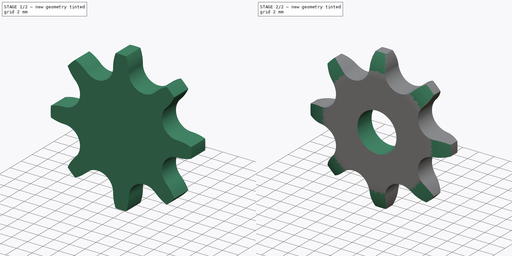
[diagram: build sequence overview — one tinted view per stage of 2, left to right]
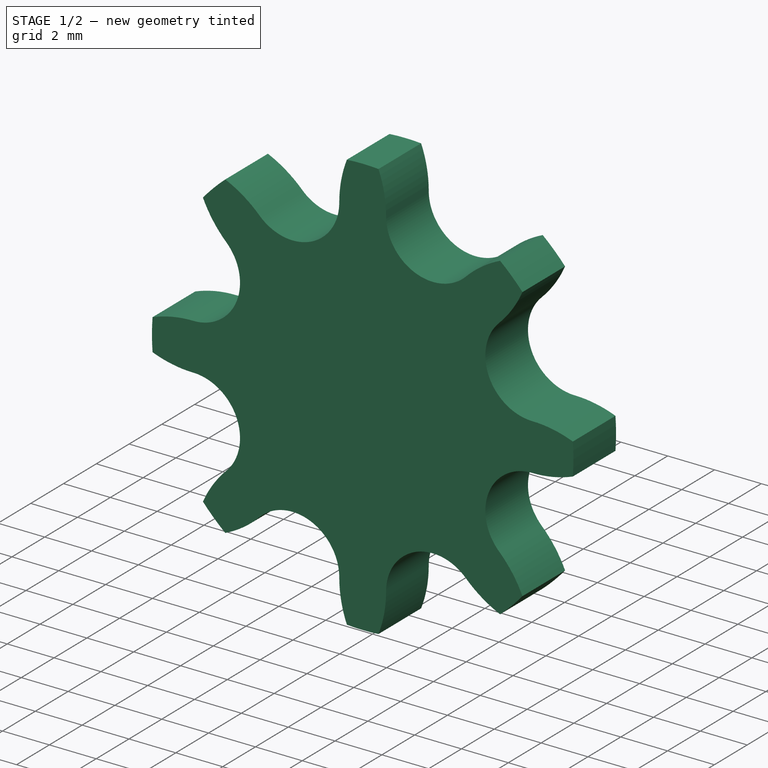
[diagram: stage 1 of 2 — iso view after this stage's code; geometry added in this stage tinted green]
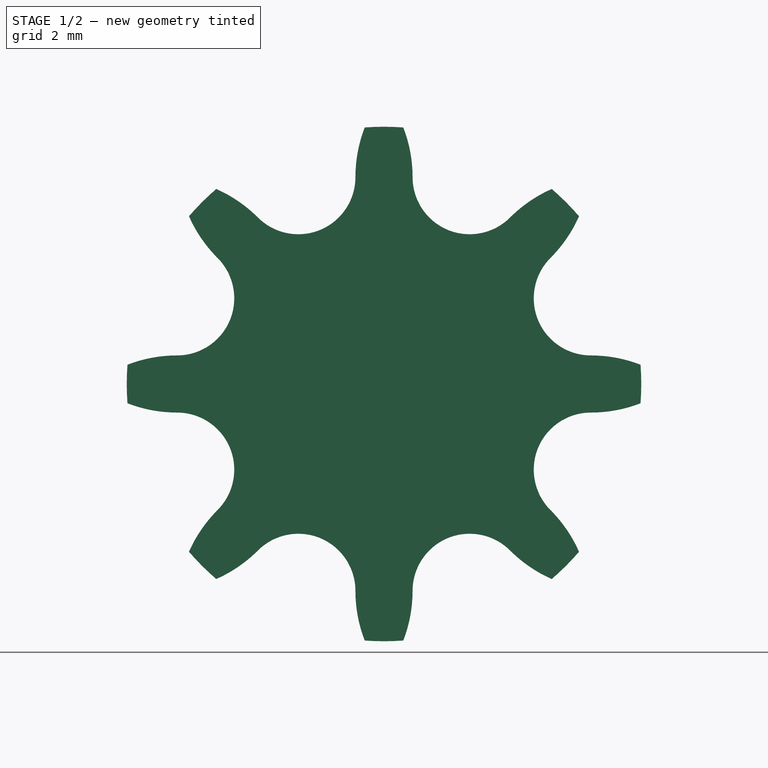
[diagram: stage 1 of 2 — front view after this stage's code; geometry added in this stage tinted green]
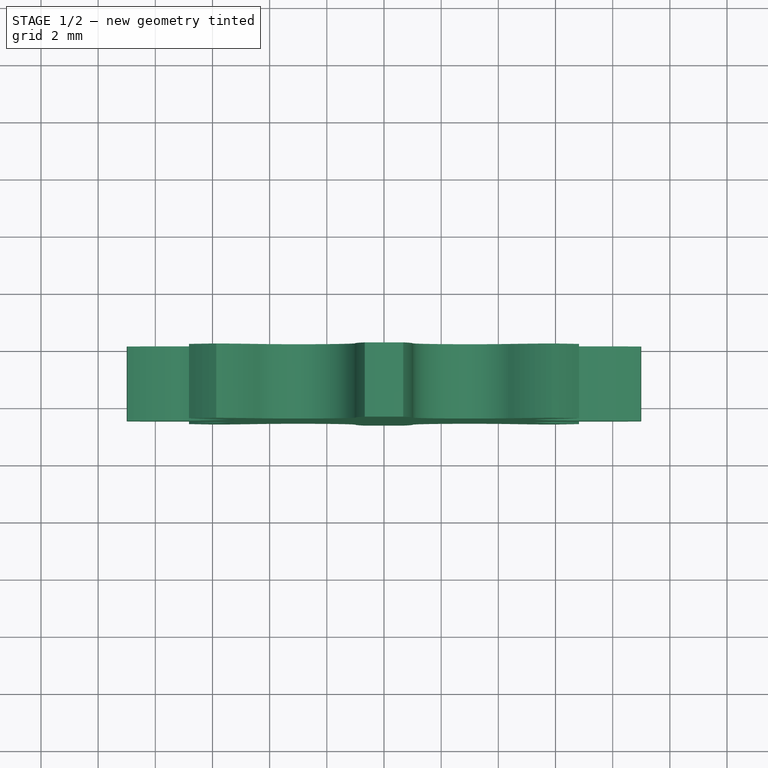
[diagram: stage 1 of 2 — top view after this stage's code; geometry added in this stage tinted green]
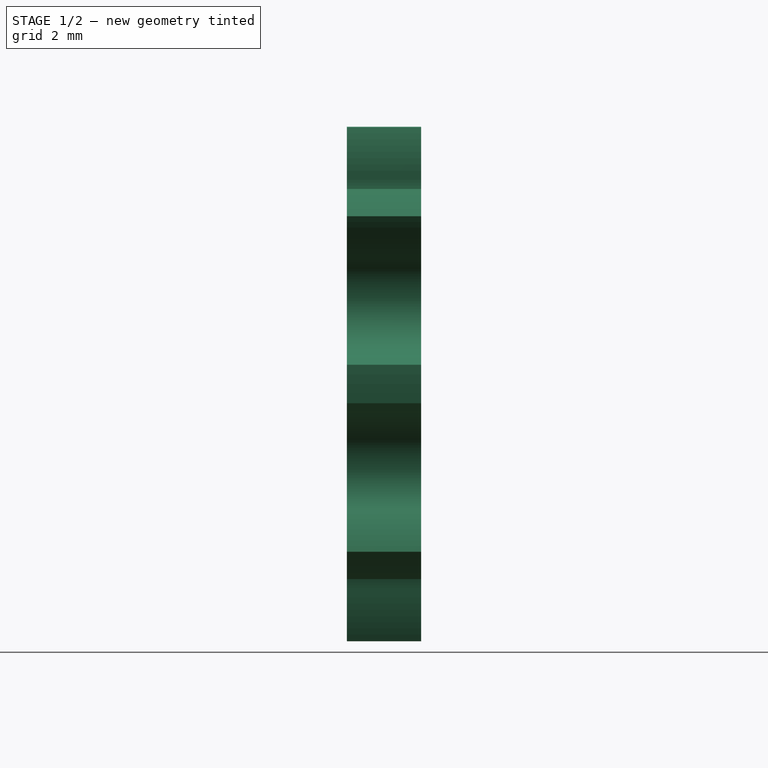
[diagram: stage 1 of 2 — right view after this stage's code; geometry added in this stage tinted green]
FCSTD DOCUMENT  (FreeCAD 0.20R29603 (Git))
Label: Plate Wheel simplex 6x2,8
License: Attribution 4.0 International (CC BY 4.0)
LicenseURL: http://creativecommons.org/licenses/by/4.0/
objects: Sketcher::SketchObject×3, Spreadsheet::Sheet×1, PartDesign::Pad×1, PartDesign::PolarPattern×1, PartDesign::Groove×1, PartDesign::Pocket×1, PartDesign::Body×1
note: 11 computed .brp shape members not serialized (recipe doc carries the construction recipe); baked Part::Feature solids carry a one-line shape summary decoded from their .brp

FEATURE [Spreadsheet::Sheet] Spreadsheet  label="Data"
  TeethNumber = 0
  cells = A1=Teeth Number; B1=P (Pitch); C1=Wc (Chain width); D1=Dr (Roller diameter); E1=Tr (Tooth radius); F1=Rw (Radius width); G1=Wt (Tooth width); H1=z (Number of teeth); I1=De (External Diameter); J1=Dp (Pitch diameter); K1=D (Hole diameter); L1=H (Total height); A2==hiddenref(.TeethNumber.String); B2(P)==.B3; C2(Wc)==.C3; D2(Dr)==.D3; E2(Tr)==.E3; F2(Rw)==.F3; G2(Wt)==.G3; H2(z)==.H3; I2(De)==.I3; J2(Dp)==.J3; K2(D)==.K3; L2(H)==.L3; A3=Z 8; B3=6; C3=2.8; D3=4; E3=6; F3=0.7; G3=2.6; H3=8; I3=18; J3=15.67; K3=5; L3=2.6; A4=Z 9; B4=6; C4=2.8; D4=4; E4=6; F4=0.7; G4=2.6; H4=9; I4=19.9; J4=17.54; K4=5; L4=2.6; A5=Z 10; B5=6; C5=2.8; D5=4; E5=6; F5=0.7; G5=2.6; H5=10; I5=21.7; J5=19.42; K5=6; L5=2.6; A6=Z 11; B6=6; C6=2.8; D6=4; E6=6; F6=0.7; G6=2.6; H6=11; I6=23.6; J6=21.3; K6=6; L6=2.6; A7=Z 12; B7=6; C7=2.8; D7=4; E7=6; F7=0.7; G7=2.6; H7=12; I7=25.4; J7=23.18; K7=6; L7=2.6; A8=Z 13; B8=6; C8=2.8; D8=4; E8=6; F8=0.7; G8=2.6; H8=13; I8=27.3; J8=25.05; K8=8; L8=2.6; A9=Z 14; B9=6; C9=2.8; D9=4; E9=6; F9=0.7; G9=2.6; H9=14; I9=29.2; J9=26.96; K9=8; L9=2.6; A10=Z 15; B10=6; C10=2.8; D10=4; E10=6; F10=0.7; G10=2.6; H10=15; I10=31; J10=28.86; K10=8; L10=2.6; A11=Z 16; B11=6; C11=2.8; D11=4; E11=6; F11=0.7; G11=2.6; H11=16; I11=33; J11=30.76; K11=8; L11=2.6; A12=Z 17; B12=6; C12=2.8; D12=4; E12=6; F12=0.7; G12=2.6; H12=17; I12=35; J12=32.65; K12=8; L12=2.6; A13=Z 18; B13=6; C13=2.8; D13=4; E13=6; F13=0.7; G13=2.6; H13=18; I13=36.9; J13=34.55; K13=8; L13=2.6; A14=Z 19; B14=6; C14=2.8; D14=4; E14=6; F14=0.7; G14=2.6; H14=19; I14=38.8; J14=36.44; K14=8; L14=2.6; A15=Z 20; B15=6; C15=2.8; D15=4; E15=6; F15=0.7; G15=2.6; H15=20; I15=40.7; J15=38.34; K15=8; L15=2.6; A16=Z 21; B16=6; C16=2.8; D16=4; E16=6; F16=0.7; G16=2.6; H16=21; I16=42.6; J16=40.25; K16=8; L16=2.6; A17=Z 22; B17=6; C17=2.8; D17=4; E17=6; F17=0.7; G17=2.6; H17=22; +340 more cells
  expr: .TeethNumber.Enum = cells[<<A3:|>>]
  expr: .cells.Bind.B2.ZZ2 = tuple(.cells; <<B>> + str(hiddenref(TeethNumber) + 3); <<ZZ>> + str(hiddenref(TeethNumber) + 3))
FEATURE [Sketcher::SketchObject] Sketch  label="Tooth sketch"
  FullyConstrained = true
  MapMode = 5
  Placement = pos=(0,0,0) rot=(1,0,0;1.5708rad)
  Support = -> [XZ_Plane]
  expr: .Constraints.De = <<Data>>.De
  expr: .Constraints.Di = <<Data>>.Dp - <<Data>>.Dr
  expr: .Constraints.Dp = <<Data>>.Dp
  expr: .Constraints.Dr = <<Data>>.Dr
  expr: .Constraints.P = Spreadsheet.P
  expr: .Constraints.Ru = 0.12 * <<Data>>.Dr * (<<Data>>.z + 2)
  sketch-geometry (16):
    g0: Circle CenterX=0 CenterY=0 CenterZ=0 NormalX=0 NormalY=0 NormalZ=1 AngleXU=0 Radius=7.835
    g1: LineSegment StartX=-3 StartY=7.2379 StartZ=0 EndX=3 EndY=7.2379 EndZ=0
    g2: Circle CenterX=-3 CenterY=7.2379 CenterZ=0 NormalX=0 NormalY=0 NormalZ=1 AngleXU=0 Radius=2
    g3: Circle CenterX=3 CenterY=7.2379 CenterZ=0 NormalX=0 NormalY=0 NormalZ=1 AngleXU=0 Radius=2
    g4: LineSegment StartX=0 StartY=0 StartZ=0 EndX=-3 EndY=7.2379 EndZ=0
    g5: LineSegment StartX=0 StartY=0 StartZ=0 EndX=3 EndY=7.2379 EndZ=0
    g6: Circle CenterX=0 CenterY=0 CenterZ=0 NormalX=0 NormalY=0 NormalZ=1 AngleXU=0 Radius=5.835
    g7: Circle CenterX=0 CenterY=0 CenterZ=0 NormalX=0 NormalY=0 NormalZ=1 AngleXU=0 Radius=9
    g8: ArcOfCircle CenterX=-3 CenterY=7.2379 CenterZ=0 NormalX=0 NormalY=0 NormalZ=1 AngleXU=0 Radius=2 StartAngle=5.10532 EndAngle=6.28319
    g9: ArcOfCircle CenterX=3.8 CenterY=7.2379 CenterZ=0 NormalX=0 NormalY=0 NormalZ=1 AngleXU=0 Radius=4.8 StartAngle=2.77137 EndAngle=3.14159
    g10: ArcOfCircle CenterX=3 CenterY=7.2379 CenterZ=0 NormalX=0 NormalY=0 NormalZ=1 AngleXU=0 Radius=2 StartAngle=3.14159 EndAngle=4.31946
    g11: ArcOfCircle CenterX=-3.8 CenterY=7.2379 CenterZ=0 NormalX=0 NormalY=0 NormalZ=1 AngleXU=0 Radius=4.8 StartAngle=0 EndAngle=0.370226
    g12: ArcOfCircle CenterX=0 CenterY=0 CenterZ=0 NormalX=0 NormalY=0 NormalZ=1 AngleXU=0 Radius=9 StartAngle=1.49575 EndAngle=1.64584
    g13: LineSegment StartX=-2.23421 StartY=5.39032 StartZ=0 EndX=-2.23421 EndY=0 EndZ=0
    g14: LineSegment StartX=2.23421 StartY=5.39032 StartZ=0 EndX=2.23421 EndY=0 EndZ=0
    g15: LineSegment StartX=-2.23421 StartY=0 StartZ=0 EndX=2.23421 EndY=0 EndZ=0
  constraints (42):
    c: Coincident(g0,g-1)
    c: Diameter(g0) = 15.67  'Dp'
    c: PointOnObject(g1,g0)
    c: PointOnObject(g1,g0)
    c: Horizontal(g1)
    c: DistanceX(g1,g1) = 6  'P'
    c: Coincident(g2,g1)
    c: Coincident(g3,g1)
    c: Equal(g2,g3)
    c: Diameter(g2) = 4  'Dr'
    c: Coincident(g4,g-1)
    c: Coincident(g4,g1)
    c: Coincident(g5,g-1)
    c: Coincident(g6,g-1)
    c: Diameter(g6) = 11.67  'Di'
    c: Coincident(g7,g-1)
    c: Diameter(g7) = 18  'De'
    c: Coincident(g8,g1)
    c: PointOnObject(g8,g4)
    c: PointOnObject(g8,g2)
    c: PointOnObject(g8,g1)
    c: PointOnObject(g9,g7)
    c: Tangent(g9,g8) = 1.5708
    c: Radius(g9) = 4.8  'Ru'
    c: Coincident(g10,g1)
    c: PointOnObject(g10,g5)
    c: PointOnObject(g10,g1)
    c: Equal(g9,g11)
    c: Coincident(g12,g-1)
    c: Coincident(g12,g9)
    c: Coincident(g12,g11)
    c: Coincident(g5,g10)
    c: Equal(g10,g8)
    c: Tangent(g11,g10) = 1.5708
    c: Coincident(g13,g8)
    c: Vertical(g13)
    c: Coincident(g14,g10)
    c: Vertical(g14)
    c: Coincident(g15,g13)
    c: Coincident(g15,g14)
    c: Horizontal(g15)
    c: PointOnObject(g12,g15)
FEATURE [PartDesign::Pad] Pad  label="Tooth"
  Direction = (0,-1,-2e-16)
  Length = 2.6
  Length2 = 100
  Placement = pos=(0,0,0) rot=(1,0,0;1.5708rad)
  Profile = -> Sketch
  Type = 0
  expr: Length = <<Data>>.Wt
FEATURE [Sketcher::SketchObject] Sketch001  label="Radius"
  FullyConstrained = true
  MapMode = 5
  Placement = pos=(0,0,0) rot=(0.57735,0.57735,0.57735;2.0944rad)
  Support = -> [YZ_Plane]
  expr: .Constraints.Re = <<Data>>.De / 2
  expr: .Constraints.Rw = <<Data>>.Rw
  expr: .Constraints.Tr = <<Data>>.Tr
  expr: .Constraints.Wt = <<Data>>.Wt
  sketch-geometry (7):
    g0: ArcOfCircle CenterX=3.4 CenterY=6.18753 CenterZ=0 NormalX=0 NormalY=0 NormalZ=1 AngleXU=0 Radius=6 StartAngle=2.65372 EndAngle=3.14159
    g1: LineSegment StartX=-1.9 StartY=9 StartZ=0 EndX=-2.6 EndY=9 EndZ=0
    g2: LineSegment StartX=-2.6 StartY=9 StartZ=0 EndX=-2.6 EndY=6.18755 EndZ=0
    g3: LineSegment StartX=-0.7 StartY=9 StartZ=0 EndX=0 EndY=9 EndZ=0
    g4: LineSegment StartX=0 StartY=9 StartZ=0 EndX=0 EndY=6.18755 EndZ=0
    g5: ArcOfCircle CenterX=-6 CenterY=6.18753 CenterZ=0 NormalX=0 NormalY=0 NormalZ=1 AngleXU=0 Radius=6 StartAngle=3.67776e-06 EndAngle=0.48787
    g6: LineSegment StartX=-1.9 StartY=9 StartZ=0 EndX=-0.7 EndY=9 EndZ=0
  constraints (22):
    c: Radius(g0) = 6  'Tr'
    c: Coincident(g1,g0)
    c: Horizontal(g1)
    c: DistanceX(g1,g1) = 0.7  'Rw'
    c: Coincident(g2,g1)
    c: Coincident(g2,g0)
    c: Vertical(g2)
    c: Tangent(g2,g0)
    c: Horizontal(g3)
    c: Coincident(g4,g3)
    c: Vertical(g4)
    c: Coincident(g5,g3)
    c: Coincident(g5,g4)
    c: Equal(g1,g3)
    c: Equal(g2,g4)
    c: Equal(g0,g5)
    c: DistanceY(g3) = 9  'Re'
    c: DistanceX(g1,g3) = 2.6  'Wt'
    c: Coincident(g6,g0)
    c: Coincident(g6,g3)
    c: Horizontal(g6)
    c: PointOnObject(g3,g-2)
FEATURE [PartDesign::PolarPattern] PolarPattern  label="Teeth"
  Angle = 360
  Axis = -> Y_Axis
  BaseFeature = -> Pad
  Occurrences = 8
  Originals = -> [Pad]
  Placement = pos=(0,0,0) rot=(1,0,0;1.5708rad)
  Refine = true
  expr: Occurrences = <<Data>>.z
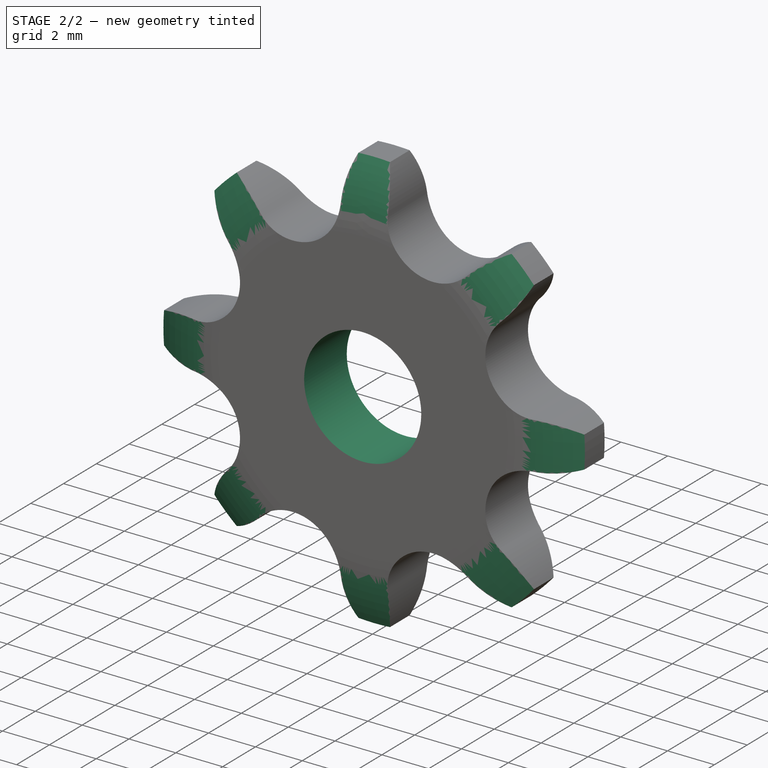
[diagram: stage 2 of 2 — iso view after this stage's code; geometry added in this stage tinted green]
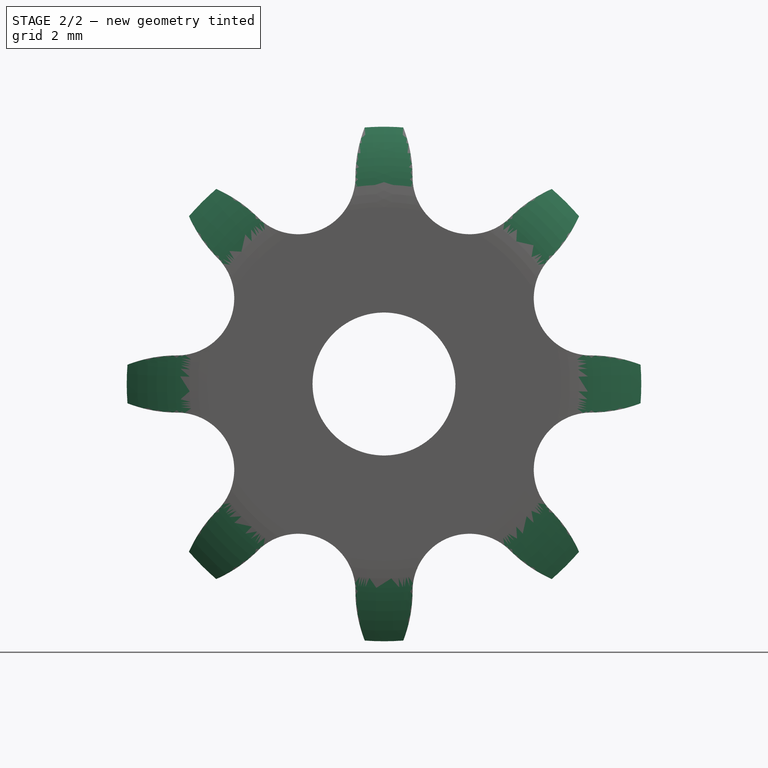
[diagram: stage 2 of 2 — front view after this stage's code; geometry added in this stage tinted green]
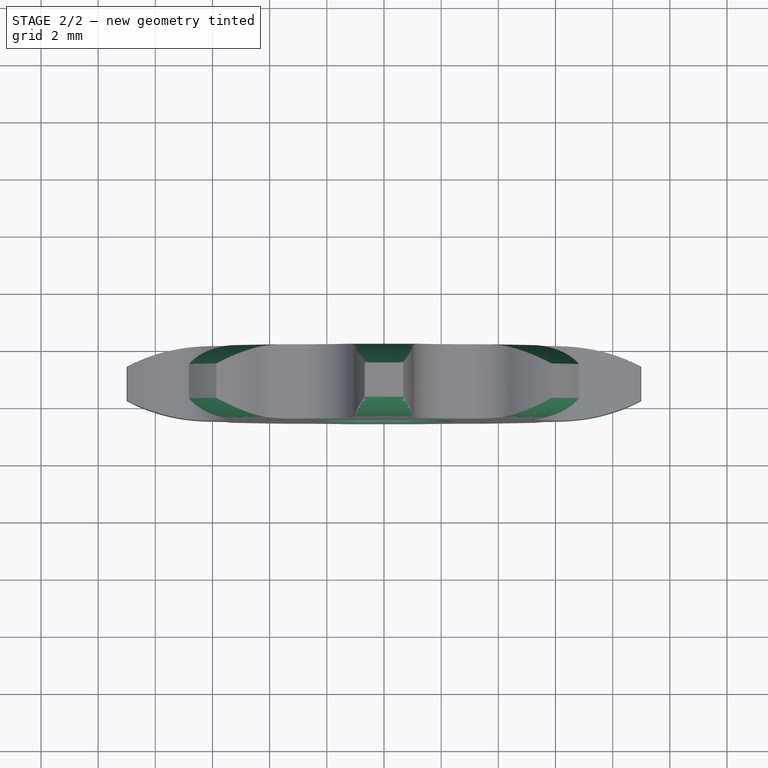
[diagram: stage 2 of 2 — top view after this stage's code; geometry added in this stage tinted green]
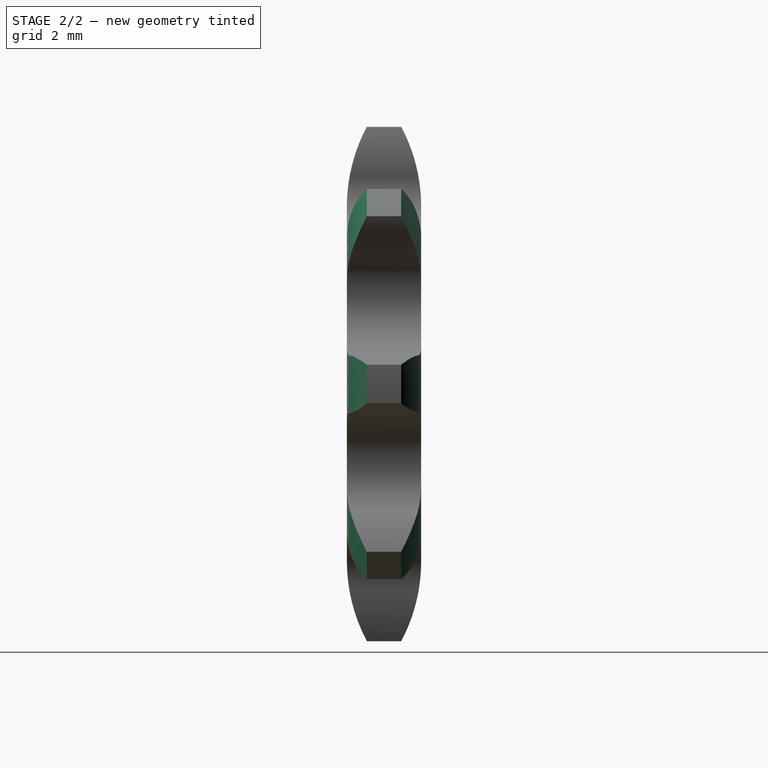
[diagram: stage 2 of 2 — right view after this stage's code; geometry added in this stage tinted green]
FEATURE [PartDesign::Groove] Groove  label="Teeth Radius"
  Angle = 360
  Axis = (1e-16,1,-1e-16)
  Base = (0,0,0)
  BaseFeature = -> PolarPattern
  Placement = pos=(0,0,0) rot=(1,0,0;1.5708rad)
  Profile = -> Sketch001
  ReferenceAxis = -> Y_Axis
  Reversed = true
FEATURE [Sketcher::SketchObject] Sketch002  label="Hole Sketch"
  FullyConstrained = true
  MapMode = 5
  Placement = pos=(0,0,0) rot=(1,0,0;1.5708rad)
  Support = -> [XZ_Plane]
  expr: .Constraints.D = <<Data>>.D
  sketch-geometry (1):
    g0: Circle CenterX=0 CenterY=0 CenterZ=0 NormalX=0 NormalY=0 NormalZ=1 AngleXU=0 Radius=2.5
  constraints (2):
    c: Coincident(g0,g-1)
    c: Diameter(g0) = 5  'D'
FEATURE [PartDesign::Pocket] Pocket  label="Hole"
  BaseFeature = -> Groove
  Direction = (0,1,2e-16)
  Length = 5
  Length2 = 100
  Placement = pos=(0,0,0) rot=(1,0,0;1.5708rad)
  Profile = -> Sketch002
  Reversed = true
  Type = 1
FEATURE [PartDesign::Body] Body  label="Plate Wheel simplex 6x2,8"
  Group = -> [Sketch,Pad,PolarPattern,Sketch001,Groove,Sketch002,Pocket]
  Origin = -> Origin
  Tip = -> Pocket
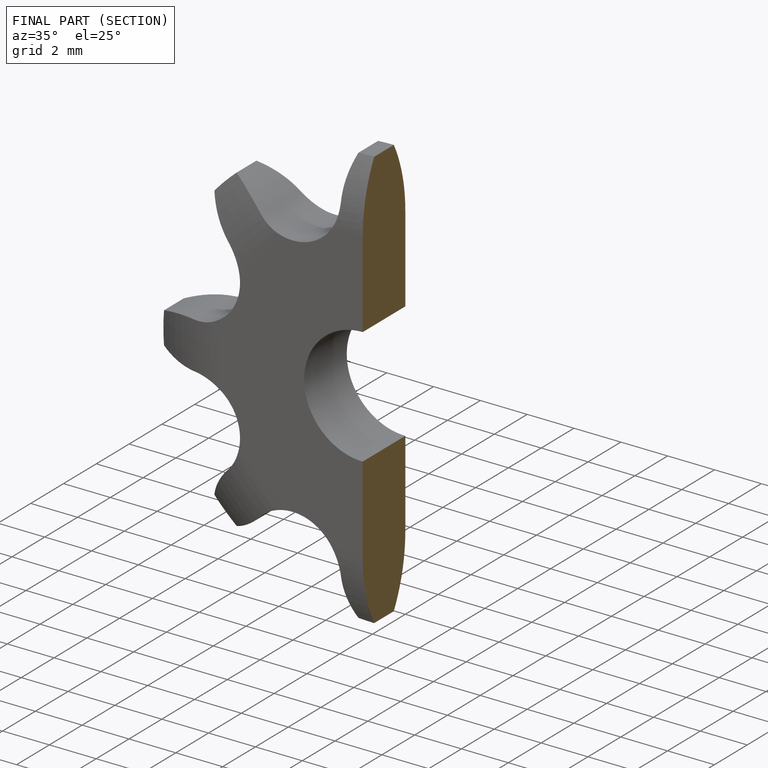
[diagram: finished part — half-section view (interior)]
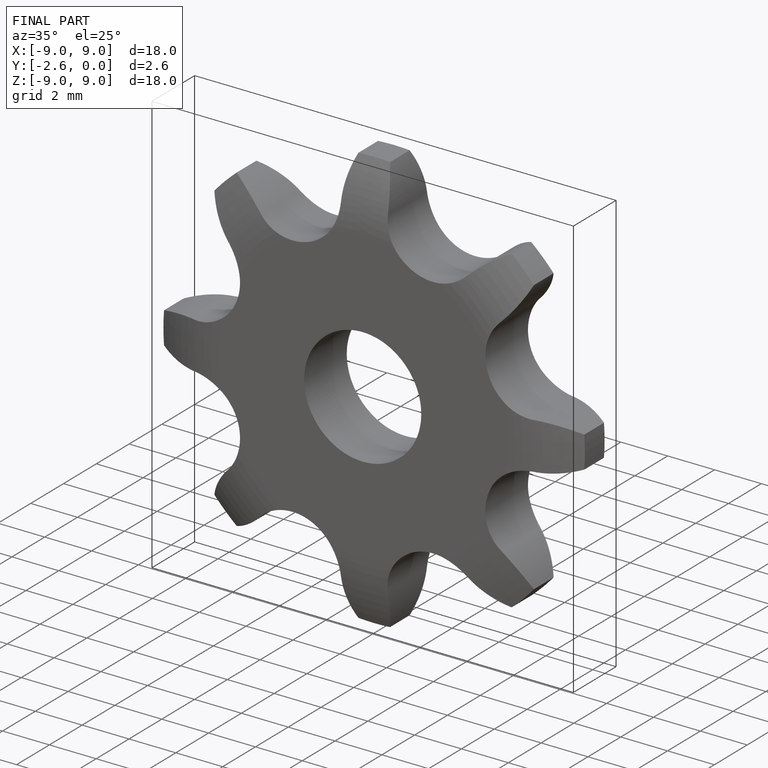
[diagram: finished part — iso view with bounding-box wireframe]
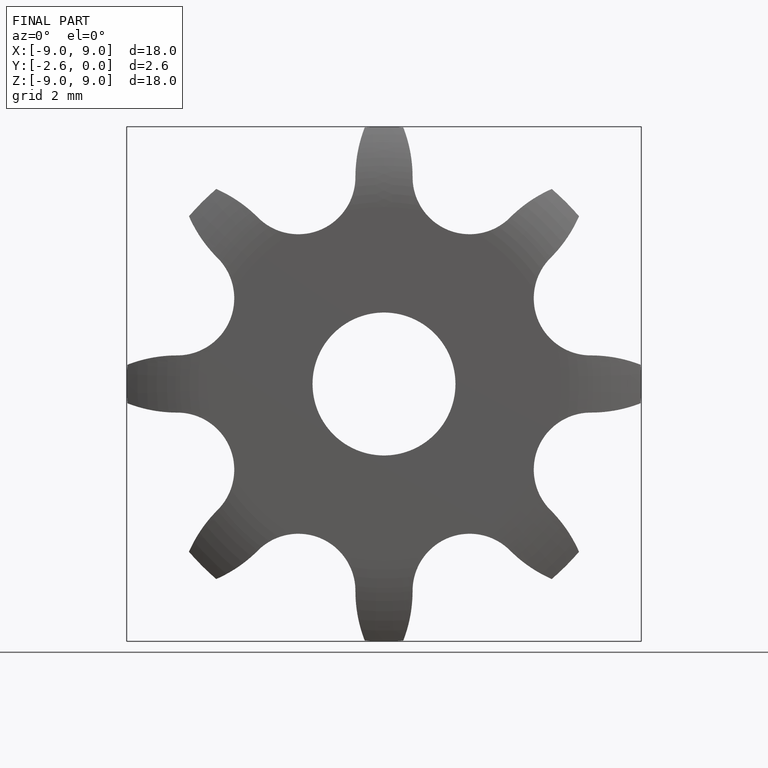
[diagram: finished part — front view with bounding-box wireframe]
